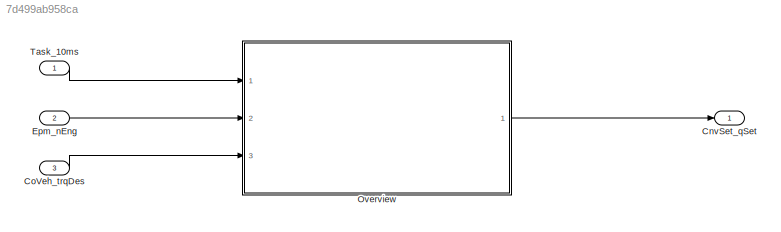
MODEL slx_7d499ab958ca
KIND model
CONFIG AbsTol = auto
CONFIG EnableMultiTasking = off
CONFIG FixedStep = auto
CONFIG MaxStep = auto
CONFIG MinStep = auto
CONFIG RelTol = 1e-3
CONFIG SampleTimeConstraint = Unconstrained
CONFIG Solver = VariableStepAuto
CONFIG SolverName = VariableStepAuto
CONFIG StartTime = 0.0
CONFIG StopTime = 10.0
BLOCK [Outport] CnvSet_qSet
  IconDisplay = Port number
BLOCK [Inport] CoVeh_trqDes
  IconDisplay = Port number
  Port = 3
BLOCK [Inport] Epm_nEng
  IconDisplay = Port number
  Port = 2
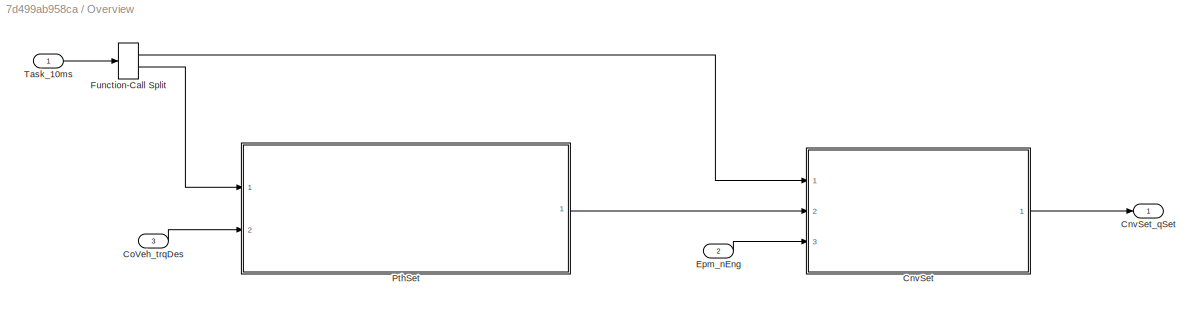
BLOCK [SubSystem] Overview
  Ports = [3, 1]
  RequestExecContextInheritance = off
BLOCK [ModelReference] Overview/CnvSet
  ModelNameDialog = CnvSet
  ModelReferenceVersion = 1.3
  Ports = [3, 1]
BLOCK [Outport] Overview/CnvSet_qSet
  IconDisplay = Port number
BLOCK [Inport] Overview/CoVeh_trqDes
  IconDisplay = Port number
  Port = 3
BLOCK [Inport] Overview/Epm_nEng
  IconDisplay = Port number
  Port = 2
BLOCK [FunctionCallSplit] Overview/Function-Call Split
  IconShape = distinctive
  NumOutputPorts = 2
  OutputPortLayout = default
  Ports = [1, 2]
BLOCK [ModelReference] Overview/PthSet
  ModelNameDialog = PthSet
  ModelReferenceVersion = 1.3
  Ports = [2, 1]
BLOCK [Inport] Overview/Task_10ms
  IconDisplay = Port number
BLOCK [Inport] Task_10ms
  IconDisplay = Port number
  OutputFunctionCall = on
LINE CoVeh_trqDes:1 -> Overview:3
LINE Epm_nEng:1 -> Overview:2
LINE Overview/CnvSet:1 -> Overview/CnvSet_qSet:1
LINE Overview/CoVeh_trqDes:1 -> Overview/PthSet:2
LINE Overview/Epm_nEng:1 -> Overview/CnvSet:3
LINE Overview/Function-Call Split:1 -> Overview/CnvSet:1
LINE Overview/Function-Call Split:2 -> Overview/PthSet:1
LINE Overview/PthSet:1 -> Overview/CnvSet:2
LINE Overview/Task_10ms:1 -> Overview/Function-Call Split:1
LINE Overview:1 -> CnvSet_qSet:1
LINE Task_10ms:1 -> Overview:1
